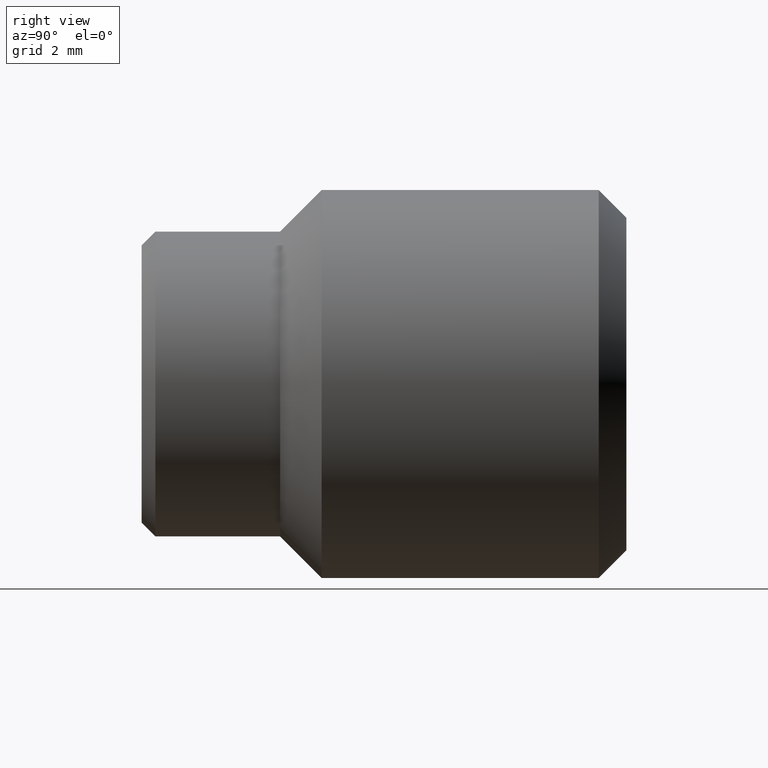
[diagram: clean part render]
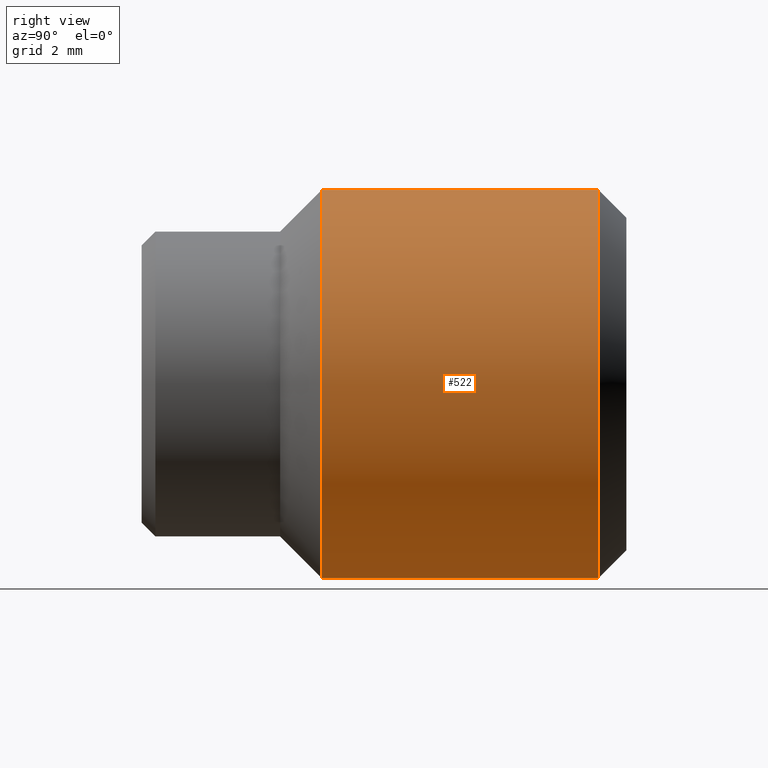
[diagram: same view with one face highlighted and labeled with its STEP entity id]
A machine part, right view. The second image highlights one B-rep face of the part: STEP entity #522.
In plain terms, the highlighted cylindrical surface (partial cylindrical patch) has radius 3.556 mm, axis along (-0, 1, -0).
Its self-contained STEP definition (entity closure, byte-faithful):
#22 = CARTESIAN_POINT ( 'NONE',  ( -0.8936271735354411900, 0.6158041395763715900, 0.2984913485094972100 ) ) ;
#83 = DIRECTION ( 'NONE',  ( -0.0000000000000000000, 1.000000000000000000, -0.0000000000000000000 ) ) ;
#133 = DIRECTION ( 'NONE',  ( 0.0000000000000000000, 0.0000000000000000000, 1.000000000000000000 ) ) ;
#147 = DIRECTION ( 'NONE',  ( -0.0000000000000000000, 1.000000000000000000, -0.0000000000000000000 ) ) ;
#154 = CARTESIAN_POINT ( 'NONE',  ( -0.8936271735354411900, 0.4158041395763716300, 0.2984913485094972100 ) ) ;
#180 = CARTESIAN_POINT ( 'NONE',  ( -0.8936271735354411900, 0.4158041395763716300, 0.1584913485094971700 ) ) ;
#190 = CARTESIAN_POINT ( 'NONE',  ( -0.8936271735354411900, 0.6158041395763715900, 0.1584913485094971700 ) ) ;
#213 = DIRECTION ( 'NONE',  ( -0.0000000000000000000, 1.000000000000000000, -0.0000000000000000000 ) ) ;
#214 = DIRECTION ( 'NONE',  ( 0.0000000000000000000, 0.0000000000000000000, 1.000000000000000000 ) ) ;
#217 = CARTESIAN_POINT ( 'NONE',  ( -0.8936271735354411900, 0.4158041395763716300, 0.01849134850949713700 ) ) ;
#252 = CARTESIAN_POINT ( 'NONE',  ( -0.8936271735354411900, 0.7798699709781208300, 0.01849134850949713700 ) ) ;
#280 = CARTESIAN_POINT ( 'NONE',  ( -0.8936271735354411900, 0.7798699709781208300, 0.2984913485094972100 ) ) ;
#284 = DIRECTION ( 'NONE',  ( 0.0000000000000000000, 0.0000000000000000000, 1.000000000000000000 ) ) ;
#304 = CARTESIAN_POINT ( 'NONE',  ( -0.8936271735354411900, 0.7798699709781208300, 0.1584913485094971700 ) ) ;
#319 = DIRECTION ( 'NONE',  ( -0.0000000000000000000, 1.000000000000000000, -0.0000000000000000000 ) ) ;
#327 = CARTESIAN_POINT ( 'NONE',  ( -0.8936271735354411900, 0.6158041395763715900, 0.01849134850949713700 ) ) ;
#330 = DIRECTION ( 'NONE',  ( -0.0000000000000000000, 1.000000000000000000, -0.0000000000000000000 ) ) ;
#347 = CIRCLE ( 'NONE', #349, 0.1400000000000000400 ) ;
#349 = AXIS2_PLACEMENT_3D ( 'NONE', #180, #147, #284 ) ;
#351 = VECTOR ( 'NONE', #213, 39.37007874015748100 ) ;
#396 = CIRCLE ( 'NONE', #427, 0.1400000000000000400 ) ;
#427 = AXIS2_PLACEMENT_3D ( 'NONE', #190, #330, #133 ) ;
#447 = VECTOR ( 'NONE', #83, 39.37007874015748100 ) ;
#458 = EDGE_CURVE ( 'NONE', #744, #765, #708, .T. ) ;
#459 = EDGE_CURVE ( 'NONE', #760, #765, #396, .T. ) ;
#473 = EDGE_CURVE ( 'NONE', #740, #744, #347, .T. ) ;
#474 = EDGE_CURVE ( 'NONE', #740, #760, #646, .T. ) ;
#522 = ADVANCED_FACE ( 'NONE', ( #877 ), #876, .T. ) ;
#585 = AXIS2_PLACEMENT_3D ( 'NONE', #304, #319, #214 ) ;
#646 = LINE ( 'NONE', #280, #351 ) ;
#708 = LINE ( 'NONE', #252, #447 ) ;
#729 = ORIENTED_EDGE ( 'NONE', *, *, #458, .T. ) ;
#740 = VERTEX_POINT ( 'NONE', #154 ) ;
#742 = ORIENTED_EDGE ( 'NONE', *, *, #474, .F. ) ;
#744 = VERTEX_POINT ( 'NONE', #217 ) ;
#760 = VERTEX_POINT ( 'NONE', #22 ) ;
#765 = VERTEX_POINT ( 'NONE', #327 ) ;
#785 = EDGE_LOOP ( 'NONE', ( #802, #729, #793, #742 ) ) ;
#793 = ORIENTED_EDGE ( 'NONE', *, *, #459, .F. ) ;
#802 = ORIENTED_EDGE ( 'NONE', *, *, #473, .T. ) ;
#876 = CYLINDRICAL_SURFACE ( 'NONE', #585, 0.1400000000000000400 ) ;
#877 = FACE_OUTER_BOUND ( 'NONE', #785, .T. ) ;